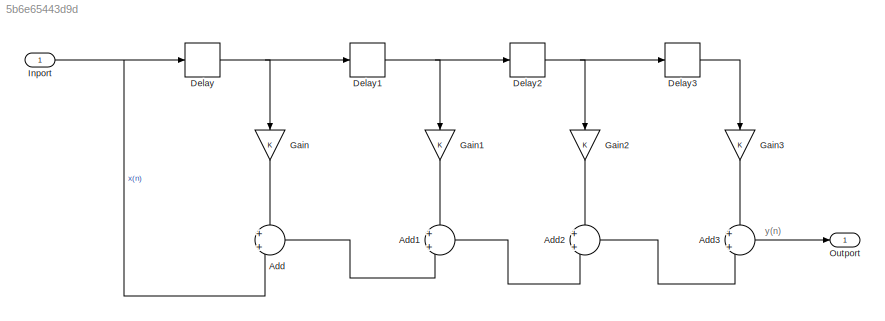
MODEL slx_5b6e65443d9d
KIND model
CONFIG AbsTol = auto
CONFIG EnableMultiTasking = off
CONFIG FixedStep = auto
CONFIG MaxStep = auto
CONFIG MinStep = auto
CONFIG RelTol = 1e-3
CONFIG SampleTimeConstraint = Unconstrained
CONFIG SolverName = VariableStepAuto
CONFIG StartTime = 0.0
CONFIG StopTime = 10.0
BLOCK [Sum] Add
  Ports = [2, 1]
BLOCK [Sum] Add1
  Ports = [2, 1]
BLOCK [Sum] Add2
  Ports = [2, 1]
BLOCK [Sum] Add3
  Ports = [2, 1]
BLOCK [Delay] Delay
  DelayLength = 1
  InputPortMap = u0
  Ports = [1, 1]
BLOCK [Delay] Delay1
  DelayLength = 1
  InputPortMap = u0
  Ports = [1, 1]
BLOCK [Delay] Delay2
  DelayLength = 1
  InputPortMap = u0
  Ports = [1, 1]
BLOCK [Delay] Delay3
  DelayLength = 1
  InputPortMap = u0
  Ports = [1, 1]
BLOCK [Gain] Gain
  NameLocation = left
BLOCK [Gain] Gain1
  NameLocation = left
BLOCK [Gain] Gain2
  NameLocation = left
BLOCK [Gain] Gain3
  NameLocation = left
BLOCK [Inport] Inport
BLOCK [Outport] Outport
  IconDisplay = Signal name
ANNOTATION (root): y(n)
LINE Add1:1 -> Add2:2
LINE Add2:1 -> Add3:2
LINE Add3:1 -> Outport:1
LINE Add:1 -> Add1:2
NET Delay1:1 -> Delay2:1, Gain1:1
NET Delay2:1 -> Delay3:1, Gain2:1
LINE Delay3:1 -> Gain3:1
NET Delay:1 -> Delay1:1, Gain:1
LINE Gain1:1 -> Add1:1
LINE Gain2:1 -> Add2:1
LINE Gain3:1 -> Add3:1
LINE Gain:1 -> Add:1
NET Inport:1 -> Add:2, Delay:1
note: NET lines group one-source signal fan-out (src -> all destinations, sorted); 1:1 wires keep LINE
